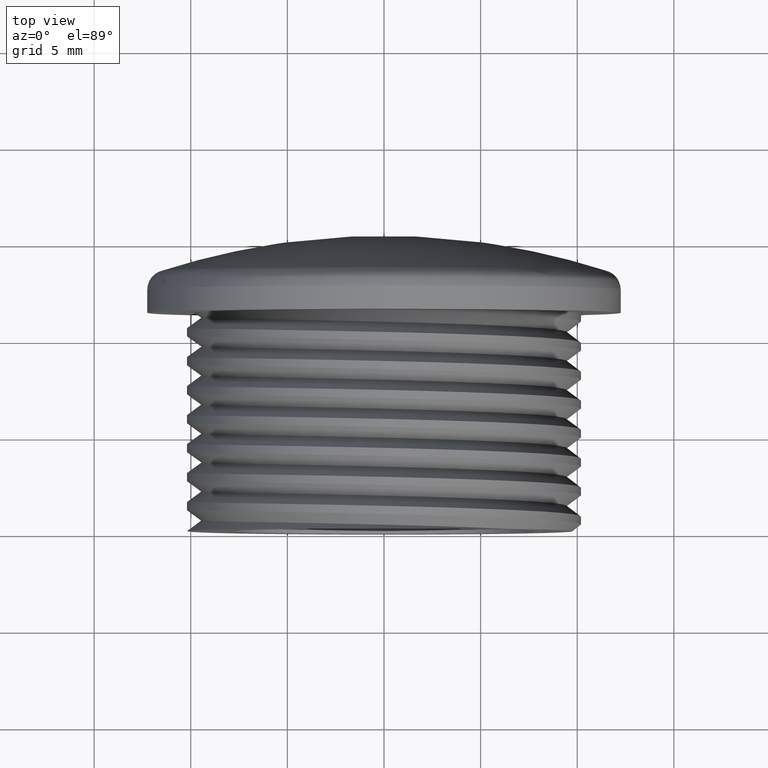
[diagram: clean part render]
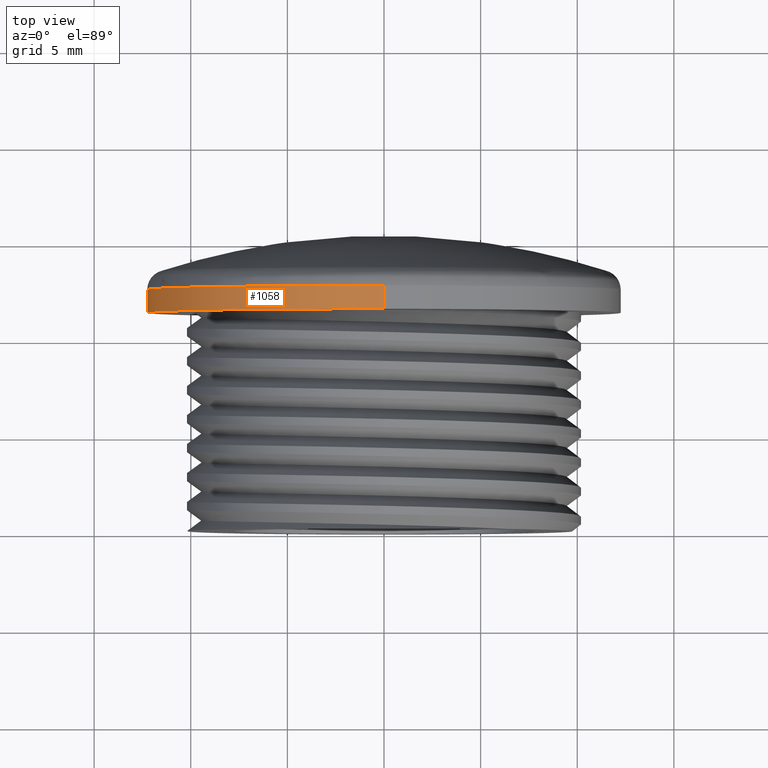
[diagram: same view with one face highlighted and labeled with its STEP entity id]
A machine part, top view. The second image highlights one B-rep face of the part: STEP entity #1058.
In plain terms, the highlighted cylindrical surface (partial cylindrical patch) has radius 12.25 mm, axis along (-0, -1, -0).
Its self-contained STEP definition (entity closure, byte-faithful):
#407 = EDGE_LOOP ( 'NONE', ( #815, #845, #866, #817, #869 ) ) ;
#416 = VERTEX_POINT ( 'NONE', #495 ) ;
#436 = VERTEX_POINT ( 'NONE', #498 ) ;
#445 = VERTEX_POINT ( 'NONE', #524 ) ;
#467 = VERTEX_POINT ( 'NONE', #513 ) ;
#490 = VERTEX_POINT ( 'NONE', #525 ) ;
#495 = CARTESIAN_POINT ( 'NONE',  ( 1.500192328955507700E-015, 12.56953596464697900, 12.25000000000000000 ) ) ;
#498 = CARTESIAN_POINT ( 'NONE',  ( 1.500192328955507700E-015, 11.35795425656142800, 12.25000000000000000 ) ) ;
#513 = CARTESIAN_POINT ( 'NONE',  ( 0.0000000000000000000, 11.35795425656142800, -12.25000000000000000 ) ) ;
#524 = CARTESIAN_POINT ( 'NONE',  ( 0.0000000000000000000, 12.56953596464697900, -12.25000000000000000 ) ) ;
#525 = CARTESIAN_POINT ( 'NONE',  ( -12.24999999999999800, 12.56953596464697900, 1.500192328955507500E-015 ) ) ;
#815 = ORIENTED_EDGE ( 'NONE', *, *, #977, .F. ) ;
#817 = ORIENTED_EDGE ( 'NONE', *, *, #994, .T. ) ;
#845 = ORIENTED_EDGE ( 'NONE', *, *, #981, .T. ) ;
#866 = ORIENTED_EDGE ( 'NONE', *, *, #1012, .T. ) ;
#869 = ORIENTED_EDGE ( 'NONE', *, *, #1028, .T. ) ;
#977 = EDGE_CURVE ( 'NONE', #416, #436, #2330, .T. ) ;
#981 = EDGE_CURVE ( 'NONE', #416, #490, #2194, .T. ) ;
#994 = EDGE_CURVE ( 'NONE', #445, #467, #2413, .T. ) ;
#1012 = EDGE_CURVE ( 'NONE', #490, #445, #2249, .T. ) ;
#1028 = EDGE_CURVE ( 'NONE', #467, #436, #2248, .T. ) ;
#1058 = ADVANCED_FACE ( 'NONE', ( #1408 ), #1395, .T. ) ;
#1395 = CYLINDRICAL_SURFACE ( 'NONE', #2221, 12.25000000000000000 ) ;
#1408 = FACE_OUTER_BOUND ( 'NONE', #407, .T. ) ;
#1418 = CARTESIAN_POINT ( 'NONE',  ( 0.0000000000000000000, -0.1420457434385714900, 0.0000000000000000000 ) ) ;
#1424 = DIRECTION ( 'NONE',  ( -0.0000000000000000000, -1.000000000000000000, -0.0000000000000000000 ) ) ;
#1425 = DIRECTION ( 'NONE',  ( 0.0000000000000000000, 0.0000000000000000000, -1.000000000000000000 ) ) ;
#2183 = VECTOR ( 'NONE', #2416, 1000.000000000000000 ) ;
#2186 = VECTOR ( 'NONE', #2321, 1000.000000000000000 ) ;
#2194 = CIRCLE ( 'NONE', #2220, 12.25000000000000000 ) ;
#2220 = AXIS2_PLACEMENT_3D ( 'NONE', #2350, #2343, #2340 ) ;
#2221 = AXIS2_PLACEMENT_3D ( 'NONE', #1418, #1424, #1425 ) ;
#2237 = AXIS2_PLACEMENT_3D ( 'NONE', #2788, #2782, #2778 ) ;
#2248 = CIRCLE ( 'NONE', #2237, 12.25000000000000000 ) ;
#2249 = CIRCLE ( 'NONE', #2250, 12.25000000000000000 ) ;
#2250 = AXIS2_PLACEMENT_3D ( 'NONE', #2533, #2534, #2541 ) ;
#2315 = CARTESIAN_POINT ( 'NONE',  ( 1.500192328955507700E-015, -0.1420457434385714900, 12.25000000000000000 ) ) ;
#2321 = DIRECTION ( 'NONE',  ( -0.0000000000000000000, -1.000000000000000000, -0.0000000000000000000 ) ) ;
#2330 = LINE ( 'NONE', #2315, #2186 ) ;
#2340 = DIRECTION ( 'NONE',  ( 0.0000000000000000000, 0.0000000000000000000, -1.000000000000000000 ) ) ;
#2343 = DIRECTION ( 'NONE',  ( -0.0000000000000000000, -1.000000000000000000, -0.0000000000000000000 ) ) ;
#2350 = CARTESIAN_POINT ( 'NONE',  ( 0.0000000000000000000, 12.56953596464697900, 0.0000000000000000000 ) ) ;
#2413 = LINE ( 'NONE', #2414, #2183 ) ;
#2414 = CARTESIAN_POINT ( 'NONE',  ( 0.0000000000000000000, -0.1420457434385714900, -12.25000000000000000 ) ) ;
#2416 = DIRECTION ( 'NONE',  ( -0.0000000000000000000, -1.000000000000000000, -0.0000000000000000000 ) ) ;
#2533 = CARTESIAN_POINT ( 'NONE',  ( 0.0000000000000000000, 12.56953596464697900, 0.0000000000000000000 ) ) ;
#2534 = DIRECTION ( 'NONE',  ( -0.0000000000000000000, -1.000000000000000000, -0.0000000000000000000 ) ) ;
#2541 = DIRECTION ( 'NONE',  ( 0.0000000000000000000, 0.0000000000000000000, -1.000000000000000000 ) ) ;
#2778 = DIRECTION ( 'NONE',  ( 0.0000000000000000000, 0.0000000000000000000, -1.000000000000000000 ) ) ;
#2782 = DIRECTION ( 'NONE',  ( 0.0000000000000000000, 1.000000000000000000, 0.0000000000000000000 ) ) ;
#2788 = CARTESIAN_POINT ( 'NONE',  ( 0.0000000000000000000, 11.35795425656142800, 0.0000000000000000000 ) ) ;